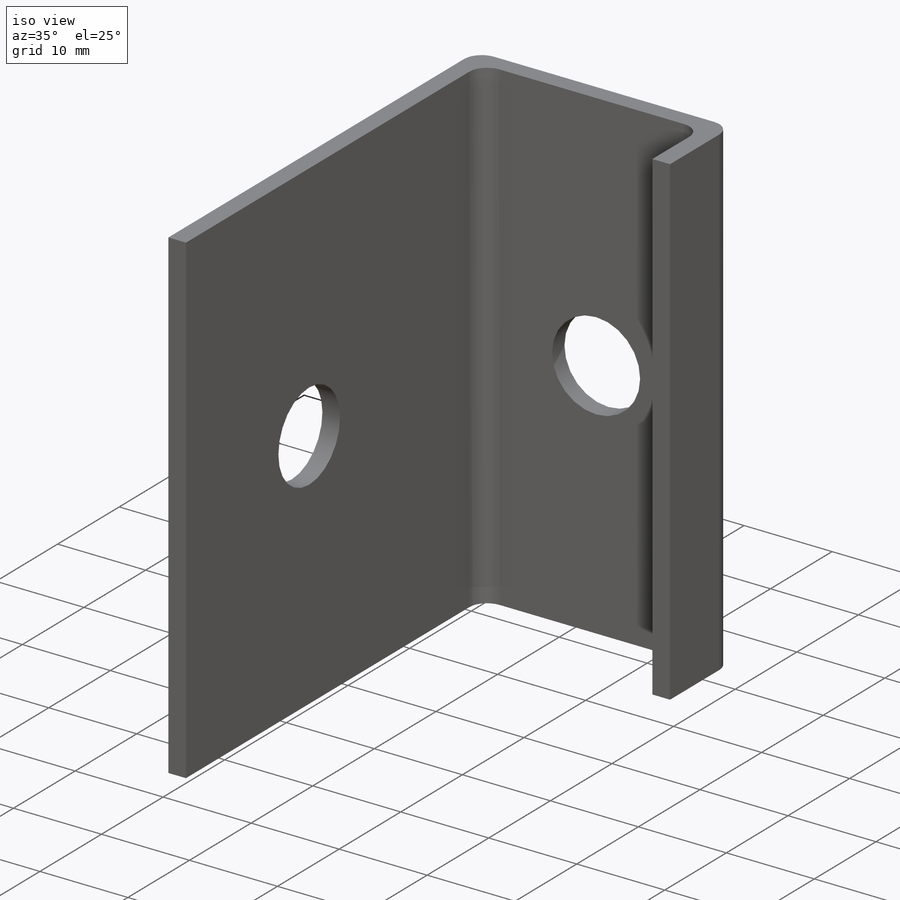
[diagram: iso view]
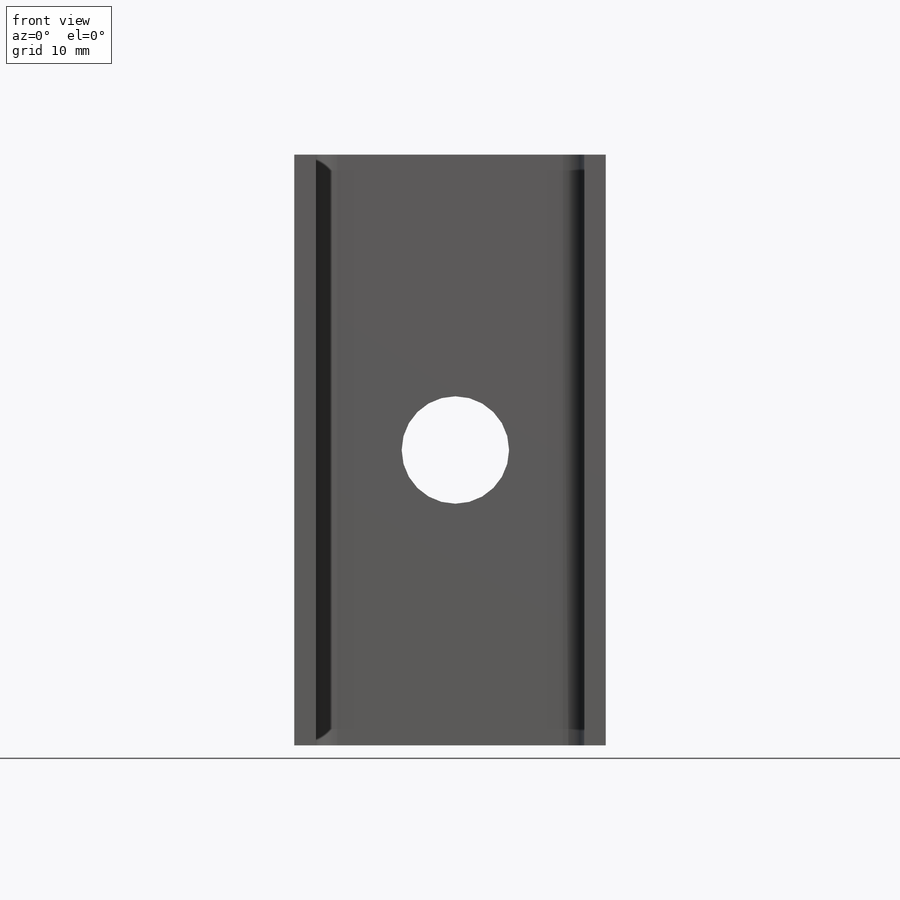
[diagram: front view]
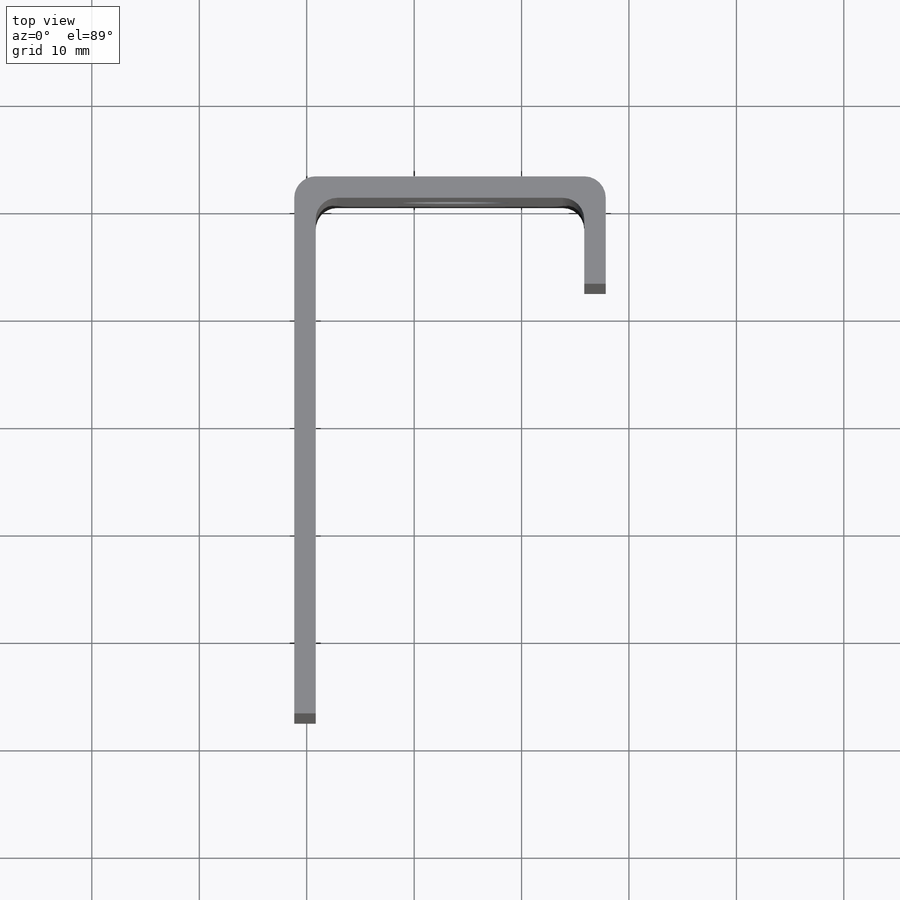
[diagram: top view]
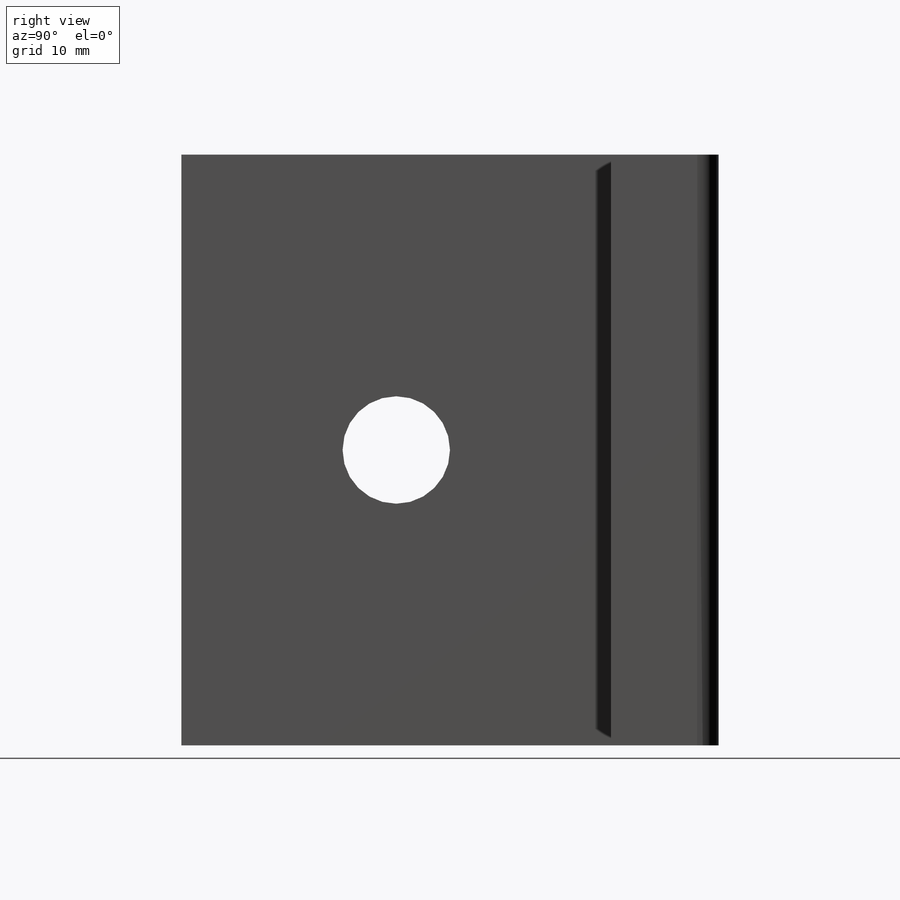
[diagram: right view]
SOLIDWORKS PART (.sldprt)
format: sldprt  version: not decoded by parser v0  size: 202,752 bytes
history: native  units: mm
features: sketch x7, plane x2, hole x2, material x1, extrude x1 (+12 scaffold rows collapsed)
feature tree (25):
  scaffold x12  (default folders/planes/origin — collapsed)
  material  "Material <not specified>"
  sketch  "Sketch1"  dims[D7=2.0mm D1=50.0mm D2=29.0mm D3=10.0mm D4=2.0mm D5=2.0mm D6=2.0mm]
  extrude  "Boss-Extrude1"  Depth=55mm
  plane  "Plane1"  Offset=0mm
  sketch  "Sketch2"  dims[D1=15.0mm D2=27.5mm]
  hole  "M10x1.0 Tapped Hole2"  Diameter=9mm Depth=23mm
  sketch  "3DSketch1"
  sketch  "Sketch3"  dims[hole-wizard template sketch: 34 standard entries collapsed; hole parameters above]
  plane  "Plane2"  Offset=0mm
  sketch  "Sketch4"  dims[D1=20.0mm D2=27.5mm D3=30.0mm]
  hole  "M10x1.0 Tapped Hole1"  Diameter=9mm Depth=23mm
  sketch  "3DSketch2"
  sketch  "Sketch5"  dims[hole-wizard template sketch: 34 standard entries collapsed; hole parameters above]
decode coverage: 8 of 10 modeling features carry decoded parameters
note: ~ marks probable driven/reference dimensions
note: suppression state not decoded; provenance and decode notes live in map.json
